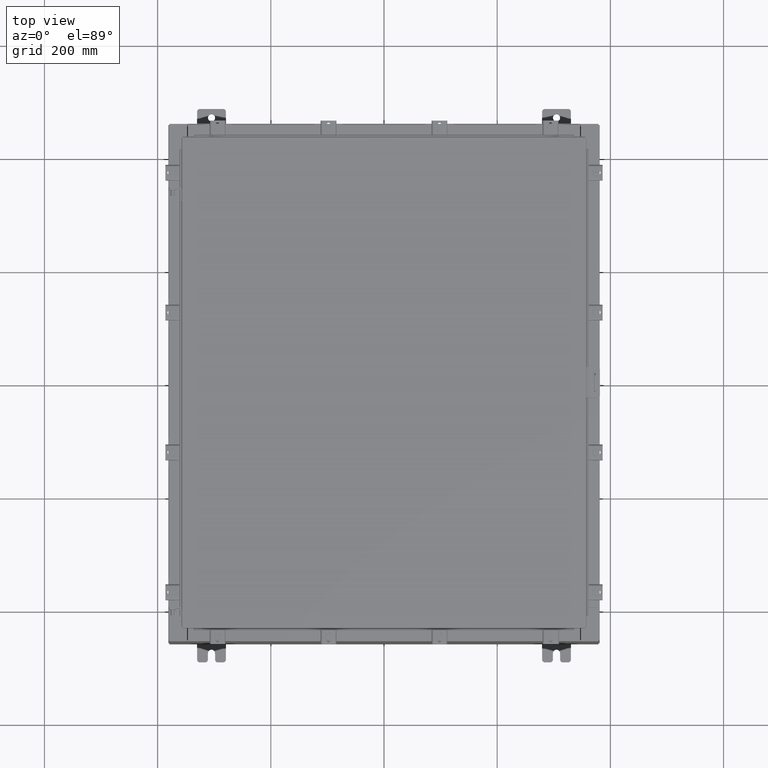
[diagram: clean part render]
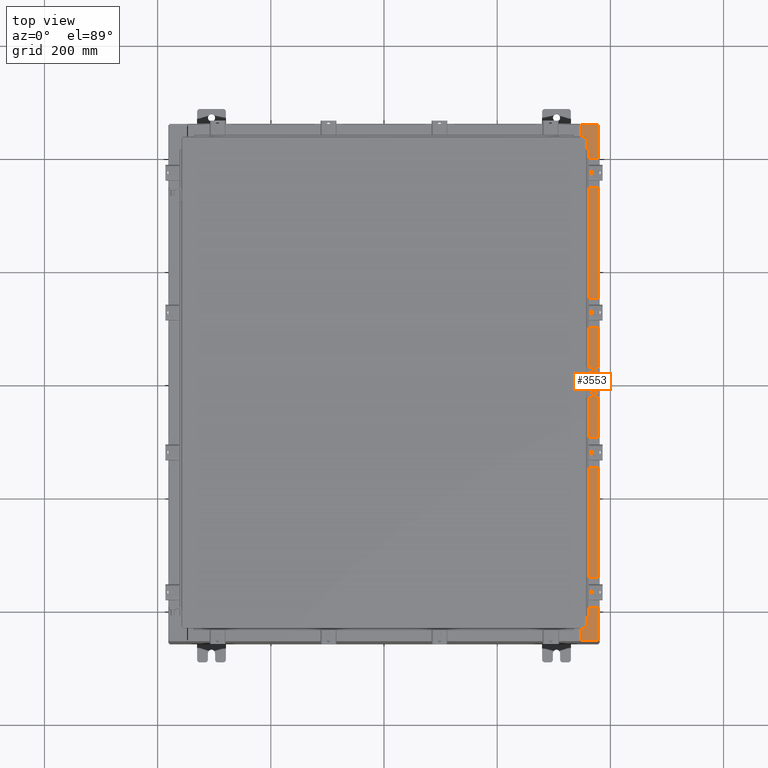
[diagram: same view with one face highlighted and labeled with its STEP entity id]
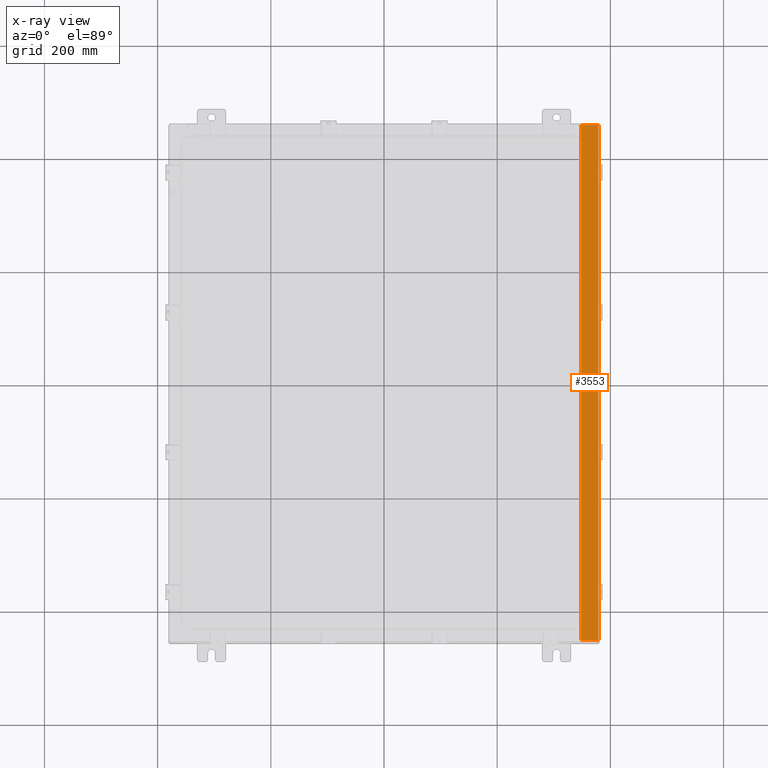
[diagram: x-ray of the same camera — body ghosted, the highlighted face saturated]
A machine part, top view. The second image highlights one B-rep face of the part: STEP entity #3553.
The next image is the same camera in x-ray: the body ghosted, the highlighted face saturated — about 0% of this face is hidden behind the body in this view.
In plain terms, the highlighted planar face has unit normal (-0, 0, -1).
Its self-contained STEP definition (entity closure, byte-faithful):
#46 = VECTOR ( 'NONE', #11150, 39.37007874015748100 ) ;
#98 = DIRECTION ( 'NONE',  ( 7.132762385546384700E-015, 0.0000000000000000000, 1.000000000000000000 ) ) ;
#138 = CARTESIAN_POINT ( 'NONE',  ( 13.71270000000004300, -16.59375000000000000, 11.92530000000000900 ) ) ;
#672 = CIRCLE ( 'NONE', #1689, 0.01867499999999949400 ) ;
#760 = FACE_OUTER_BOUND ( 'NONE', #7790, .T. ) ;
#1143 = LINE ( 'NONE', #4642, #5606 ) ;
#1689 = AXIS2_PLACEMENT_3D ( 'NONE', #13881, #2551, #15798 ) ;
#1904 = CARTESIAN_POINT ( 'NONE',  ( 13.75005000000004300, -16.63110000000000000, 11.92530000000000900 ) ) ;
#1963 = CARTESIAN_POINT ( 'NONE',  ( 13.69970000000004100, -16.63110000000000400, 11.92530000000000900 ) ) ;
#2265 = CARTESIAN_POINT ( 'NONE',  ( 14.91230000000003900, 17.92530000000000000, 11.92530000000000000 ) ) ;
#2270 = AXIS2_PLACEMENT_3D ( 'NONE', #22382, #24283, #12918 ) ;
#2551 = DIRECTION ( 'NONE',  ( 7.132762385546384700E-015, 0.0000000000000000000, 1.000000000000000000 ) ) ;
#2717 = VERTEX_POINT ( 'NONE', #18046 ) ;
#2897 = CARTESIAN_POINT ( 'NONE',  ( 13.75005000000004300, 16.63110000000000000, 11.92530000000000900 ) ) ;
#3135 = EDGE_CURVE ( 'NONE', #11224, #23222, #5012, .T. ) ;
#3165 = CARTESIAN_POINT ( 'NONE',  ( 13.69970000000004100, -16.63110000000000400, 11.92530000000000900 ) ) ;
#3222 = CARTESIAN_POINT ( 'NONE',  ( 13.69970000000004100, 0.0000000000000000000, 11.92530000000000900 ) ) ;
#3275 = CARTESIAN_POINT ( 'NONE',  ( 13.71270000000004300, 16.59375000000000000, 11.92530000000000900 ) ) ;
#3553 = ADVANCED_FACE ( 'NONE', ( #760 ), #11026, .F. ) ;
#3740 = CARTESIAN_POINT ( 'NONE',  ( 13.75005000000004300, 16.63110000000000000, 11.92530000000000900 ) ) ;
#3755 = VECTOR ( 'NONE', #23379, 39.37007874015748100 ) ;
#3840 = VECTOR ( 'NONE', #5870, 39.37007874015748100 ) ;
#4479 = LINE ( 'NONE', #10060, #9501 ) ;
#4543 = ORIENTED_EDGE ( 'NONE', *, *, #7667, .T. ) ;
#4642 = CARTESIAN_POINT ( 'NONE',  ( 8.531902765212701500E-014, 17.92530000000000000, 11.92530000000010800 ) ) ;
#4860 = VERTEX_POINT ( 'NONE', #1963 ) ;
#5012 = LINE ( 'NONE', #138, #3840 ) ;
#5074 = DIRECTION ( 'NONE',  ( 1.000000000000000000, 4.340572780399910900E-014, 0.0000000000000000000 ) ) ;
#5422 = ORIENTED_EDGE ( 'NONE', *, *, #6508, .F. ) ;
#5606 = VECTOR ( 'NONE', #6552, 39.37007874015748100 ) ;
#5870 = DIRECTION ( 'NONE',  ( -0.0000000000000000000, 1.000000000000000000, -0.0000000000000000000 ) ) ;
#5978 = ORIENTED_EDGE ( 'NONE', *, *, #22978, .F. ) ;
#6216 = LINE ( 'NONE', #12195, #21332 ) ;
#6225 = EDGE_CURVE ( 'NONE', #12238, #14580, #11285, .T. ) ;
#6293 = VERTEX_POINT ( 'NONE', #1904 ) ;
#6309 = CARTESIAN_POINT ( 'NONE',  ( 8.531902765212701500E-014, -17.92530000000000000, 11.92530000000010800 ) ) ;
#6326 = VERTEX_POINT ( 'NONE', #22840 ) ;
#6508 = EDGE_CURVE ( 'NONE', #6293, #16900, #672, .T. ) ;
#6552 = DIRECTION ( 'NONE',  ( -1.000000000000000000, 0.0000000000000000000, 7.132762385546384700E-015 ) ) ;
#6950 = AXIS2_PLACEMENT_3D ( 'NONE', #11418, #98, #13320 ) ;
#6993 = ORIENTED_EDGE ( 'NONE', *, *, #9191, .T. ) ;
#7560 = LINE ( 'NONE', #3275, #12543 ) ;
#7667 = EDGE_CURVE ( 'NONE', #4860, #6326, #4479, .T. ) ;
#7790 = EDGE_LOOP ( 'NONE', ( #9867, #4543, #12347, #5978, #6993, #14096, #12215, #23671, #22502, #18313, #14593, #5422 ) ) ;
#8135 = VERTEX_POINT ( 'NONE', #16862 ) ;
#8147 = DIRECTION ( 'NONE',  ( 1.000000000000000000, 0.0000000000000000000, -7.132762385546384700E-015 ) ) ;
#8626 = CIRCLE ( 'NONE', #6950, 0.01867499999999949400 ) ;
#8774 = LINE ( 'NONE', #21503, #3755 ) ;
#9191 = EDGE_CURVE ( 'NONE', #13429, #2717, #1143, .T. ) ;
#9277 = VERTEX_POINT ( 'NONE', #23994 ) ;
#9501 = VECTOR ( 'NONE', #23317, 39.37007874015748100 ) ;
#9867 = ORIENTED_EDGE ( 'NONE', *, *, #21441, .F. ) ;
#10060 = CARTESIAN_POINT ( 'NONE',  ( 13.69970000000004100, 0.0000000000000000000, 11.92530000000000900 ) ) ;
#11026 = PLANE ( 'NONE',  #2270 ) ;
#11150 = DIRECTION ( 'NONE',  ( -1.000000000000000000, 4.340572780399910900E-014, 0.0000000000000000000 ) ) ;
#11224 = VERTEX_POINT ( 'NONE', #11448 ) ;
#11285 = LINE ( 'NONE', #3740, #46 ) ;
#11418 = CARTESIAN_POINT ( 'NONE',  ( 13.75005000000004300, 16.61242500000000200, 11.92530000000000900 ) ) ;
#11448 = CARTESIAN_POINT ( 'NONE',  ( 13.71270000000004300, -16.59375000000000000, 11.92530000000000900 ) ) ;
#12133 = EDGE_CURVE ( 'NONE', #6326, #9277, #15539, .T. ) ;
#12195 = CARTESIAN_POINT ( 'NONE',  ( 13.75005000000004300, -16.59375000000000000, 11.92530000000000900 ) ) ;
#12215 = ORIENTED_EDGE ( 'NONE', *, *, #6225, .F. ) ;
#12238 = VERTEX_POINT ( 'NONE', #2897 ) ;
#12347 = ORIENTED_EDGE ( 'NONE', *, *, #12133, .T. ) ;
#12543 = VECTOR ( 'NONE', #14615, 39.37007874015748100 ) ;
#12918 = DIRECTION ( 'NONE',  ( -1.000000000000000000, 0.0000000000000000000, 7.132762385546384700E-015 ) ) ;
#13085 = EDGE_CURVE ( 'NONE', #23222, #8135, #7560, .T. ) ;
#13123 = CARTESIAN_POINT ( 'NONE',  ( 13.69970000000004100, 16.63110000000000400, 11.92530000000000900 ) ) ;
#13261 = LINE ( 'NONE', #3165, #22756 ) ;
#13320 = DIRECTION ( 'NONE',  ( 1.000000000000000000, 0.0000000000000000000, 0.0000000000000000000 ) ) ;
#13429 = VERTEX_POINT ( 'NONE', #2265 ) ;
#13881 = CARTESIAN_POINT ( 'NONE',  ( 13.75005000000004300, -16.61242500000000200, 11.92530000000000900 ) ) ;
#14096 = ORIENTED_EDGE ( 'NONE', *, *, #20012, .T. ) ;
#14213 = VECTOR ( 'NONE', #18409, 39.37007874015748100 ) ;
#14580 = VERTEX_POINT ( 'NONE', #13123 ) ;
#14593 = ORIENTED_EDGE ( 'NONE', *, *, #16486, .F. ) ;
#14615 = DIRECTION ( 'NONE',  ( 1.000000000000000000, 0.0000000000000000000, 0.0000000000000000000 ) ) ;
#15274 = CARTESIAN_POINT ( 'NONE',  ( 13.75005000000004300, -16.59375000000000000, 11.92530000000000900 ) ) ;
#15539 = LINE ( 'NONE', #6309, #19420 ) ;
#15798 = DIRECTION ( 'NONE',  ( 1.000000000000000000, 0.0000000000000000000, 0.0000000000000000000 ) ) ;
#16486 = EDGE_CURVE ( 'NONE', #16900, #11224, #6216, .T. ) ;
#16862 = CARTESIAN_POINT ( 'NONE',  ( 13.75005000000004300, 16.59375000000000000, 11.92530000000000900 ) ) ;
#16900 = VERTEX_POINT ( 'NONE', #15274 ) ;
#18046 = CARTESIAN_POINT ( 'NONE',  ( 13.69970000000004100, 17.92530000000000000, 11.92530000000000900 ) ) ;
#18313 = ORIENTED_EDGE ( 'NONE', *, *, #3135, .F. ) ;
#18409 = DIRECTION ( 'NONE',  ( 0.0000000000000000000, -1.000000000000000000, 0.0000000000000000000 ) ) ;
#19420 = VECTOR ( 'NONE', #8147, 39.37007874015748100 ) ;
#19576 = EDGE_CURVE ( 'NONE', #8135, #12238, #8626, .T. ) ;
#19874 = LINE ( 'NONE', #3222, #14213 ) ;
#20012 = EDGE_CURVE ( 'NONE', #2717, #14580, #19874, .T. ) ;
#20265 = CARTESIAN_POINT ( 'NONE',  ( 13.71270000000004300, 16.59375000000000000, 11.92530000000000900 ) ) ;
#21332 = VECTOR ( 'NONE', #23561, 39.37007874015748100 ) ;
#21441 = EDGE_CURVE ( 'NONE', #4860, #6293, #13261, .T. ) ;
#21503 = CARTESIAN_POINT ( 'NONE',  ( 14.91230000000003900, -17.92530000000000000, 11.92530000000000000 ) ) ;
#22382 = CARTESIAN_POINT ( 'NONE',  ( 8.531902765212701500E-014, 0.0000000000000000000, 11.92530000000010800 ) ) ;
#22502 = ORIENTED_EDGE ( 'NONE', *, *, #13085, .F. ) ;
#22756 = VECTOR ( 'NONE', #5074, 39.37007874015748100 ) ;
#22840 = CARTESIAN_POINT ( 'NONE',  ( 13.69970000000004100, -17.92530000000000000, 11.92530000000000900 ) ) ;
#22978 = EDGE_CURVE ( 'NONE', #13429, #9277, #8774, .T. ) ;
#23222 = VERTEX_POINT ( 'NONE', #20265 ) ;
#23317 = DIRECTION ( 'NONE',  ( 0.0000000000000000000, -1.000000000000000000, 0.0000000000000000000 ) ) ;
#23379 = DIRECTION ( 'NONE',  ( -0.0000000000000000000, -1.000000000000000000, -0.0000000000000000000 ) ) ;
#23561 = DIRECTION ( 'NONE',  ( -1.000000000000000000, 0.0000000000000000000, 0.0000000000000000000 ) ) ;
#23671 = ORIENTED_EDGE ( 'NONE', *, *, #19576, .F. ) ;
#23994 = CARTESIAN_POINT ( 'NONE',  ( 14.91230000000003900, -17.92530000000000000, 11.92530000000000000 ) ) ;
#24283 = DIRECTION ( 'NONE',  ( -7.132762385546384700E-015, 0.0000000000000000000, -1.000000000000000000 ) ) ;